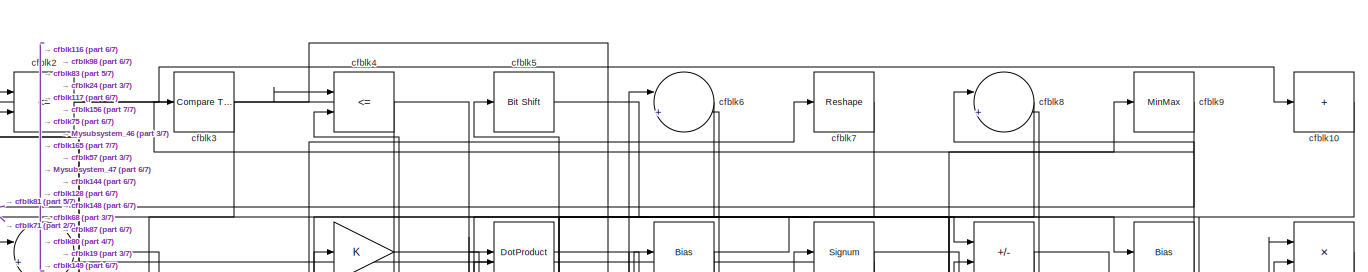
[diagram: root canvas - part 1/7, full width, top band]
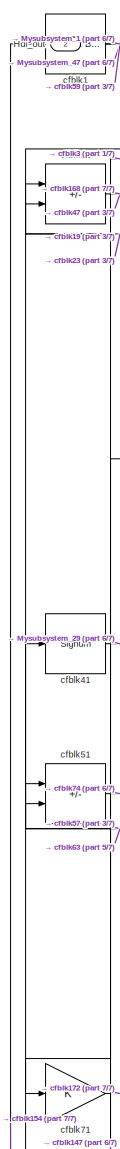
[diagram: root canvas - part 2/7, top left region]
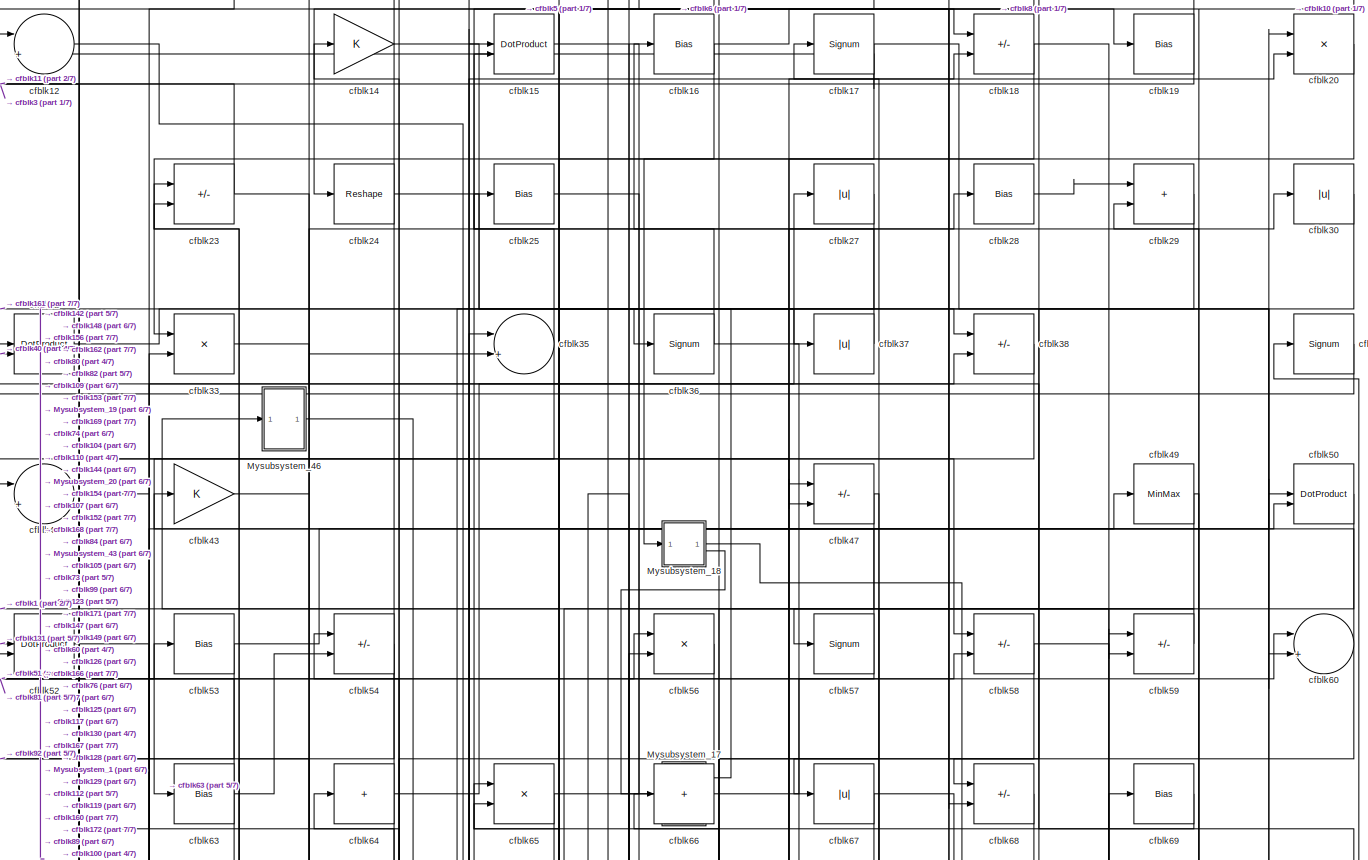
[diagram: root canvas - part 3/7, full width, top band]
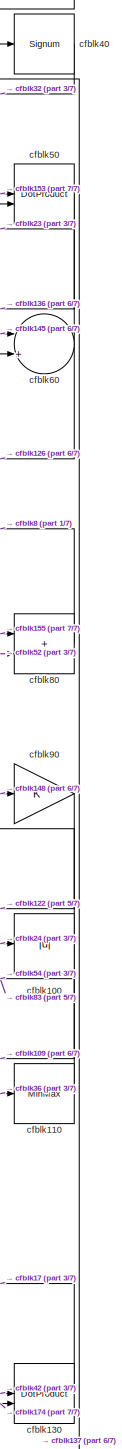
[diagram: root canvas - part 4/7, middle right region]
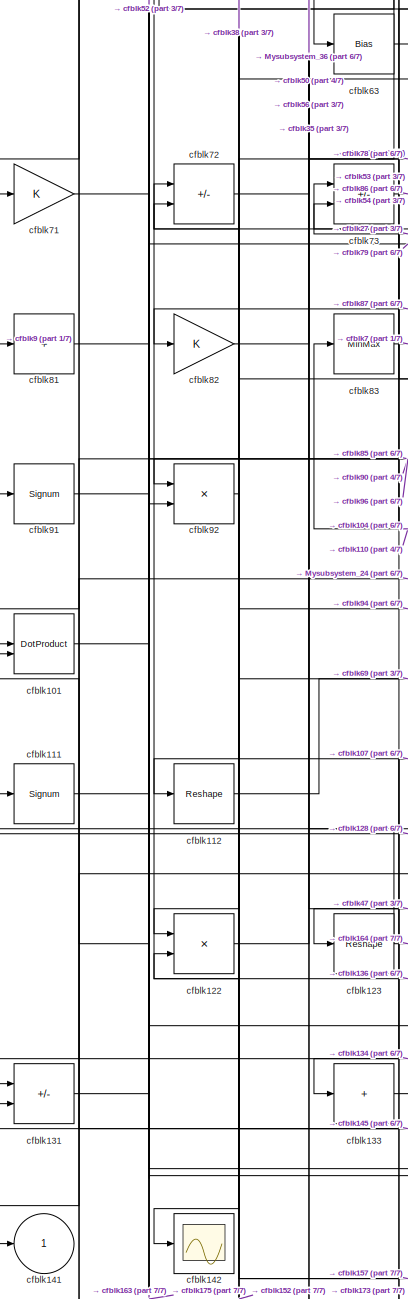
[diagram: root canvas - part 5/7, middle left region]
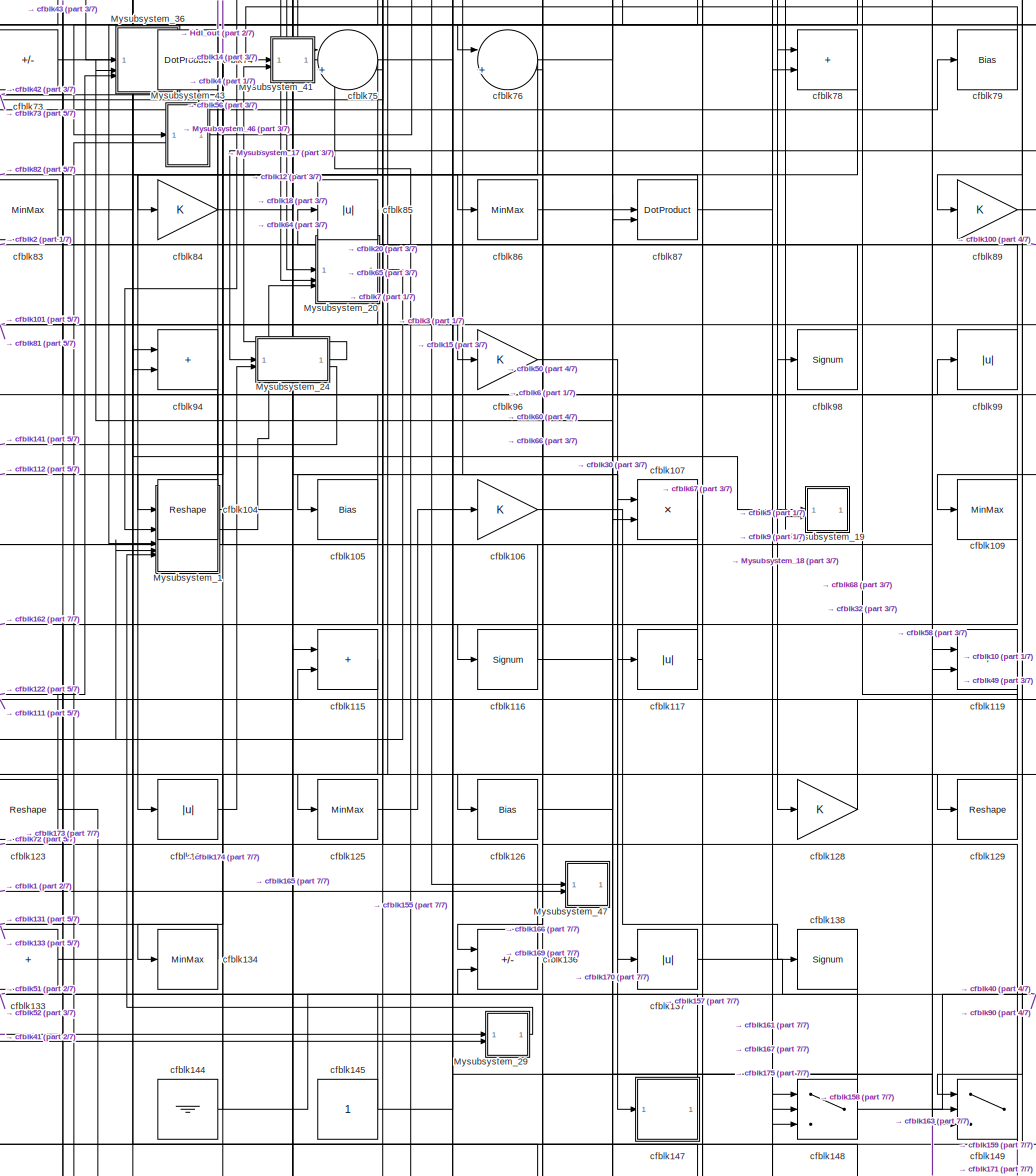
[diagram: root canvas - part 6/7, central region]
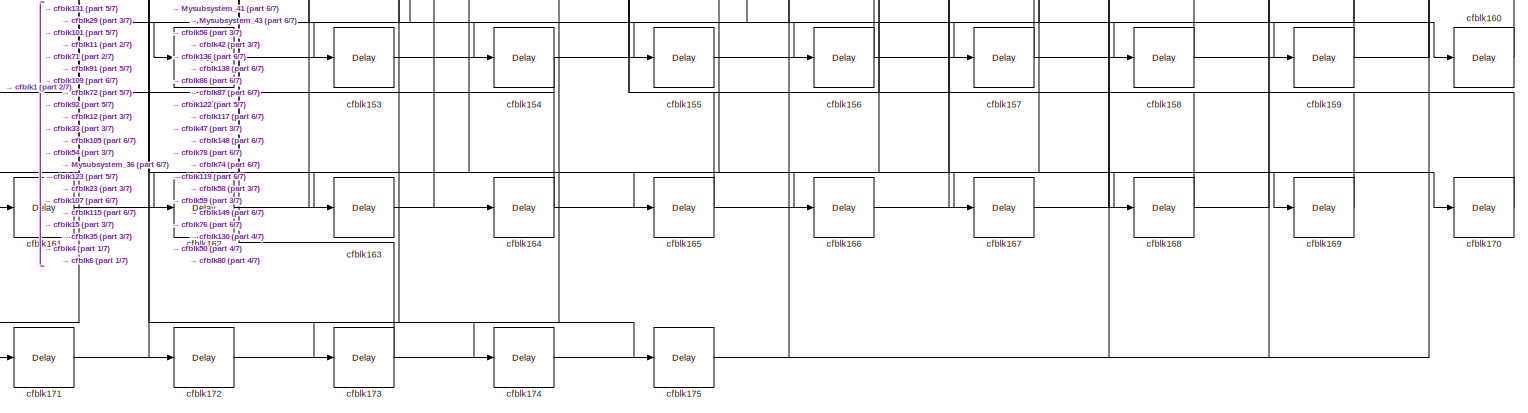
[diagram: root canvas - part 7/7, full width, bottom band]
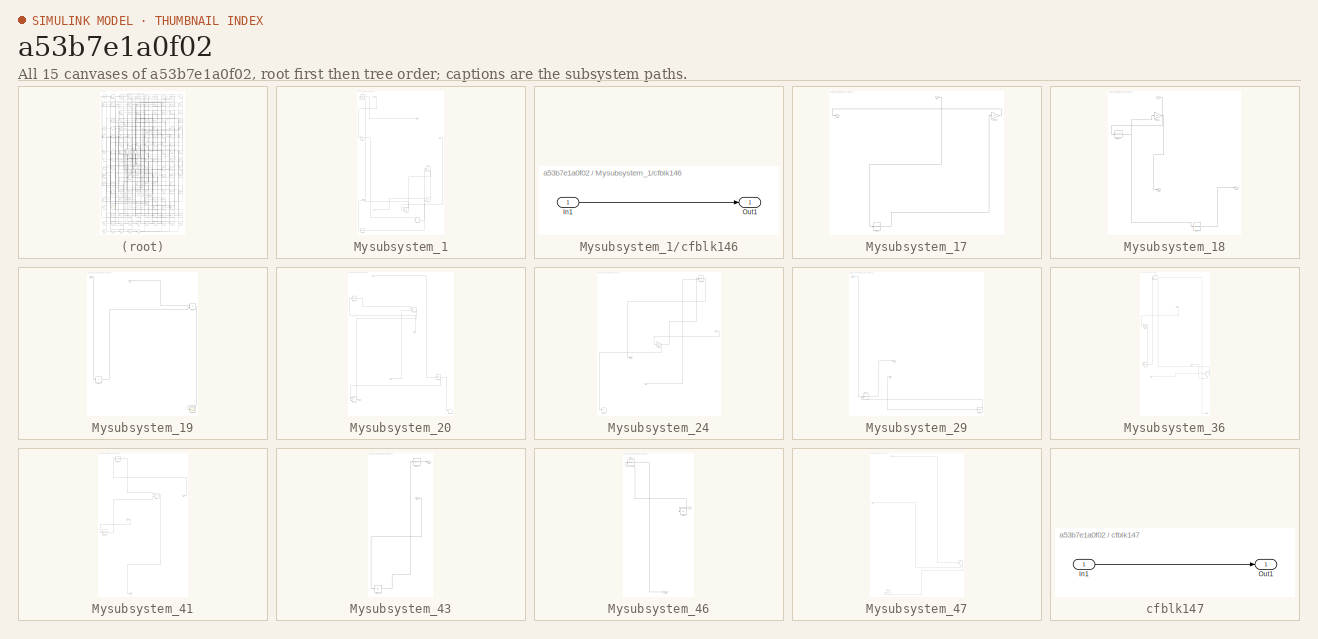
[diagram: thumbnail index - all 15 canvases of the model, root first then tree order]
MODEL slx_a53b7e1a0f02
KIND model
CONFIG AbsTol = auto
CONFIG EnableMultiTasking = off
CONFIG FixedStep = auto
CONFIG MaxStep = auto
CONFIG MinStep = auto
CONFIG RelTol = 1e-3
CONFIG SampleTimeConstraint = Unconstrained
CONFIG SolverName = VariableStepAuto
CONFIG StartTime = 0.0
CONFIG StopTime = 10.0
BLOCK [Outport] Hdl_out
  OutDataTypeStr = uint8
  Port = 2
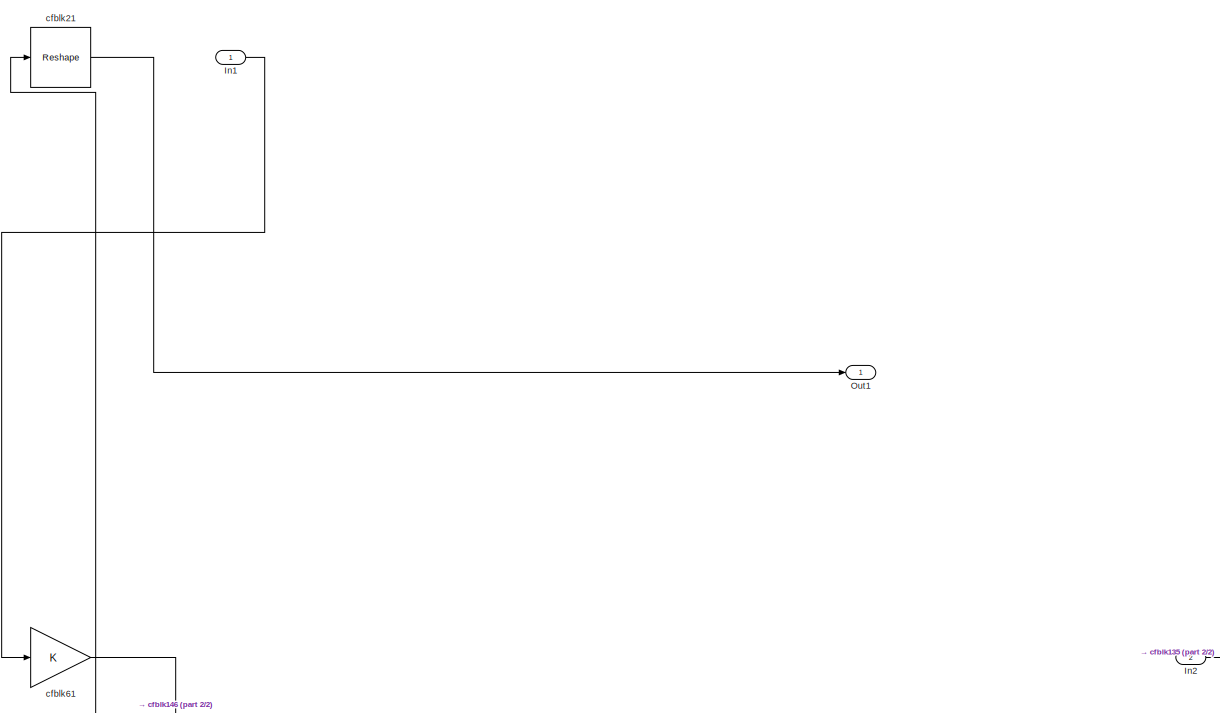
[diagram: Mysubsystem_1 - part 1/2, full width, top band]
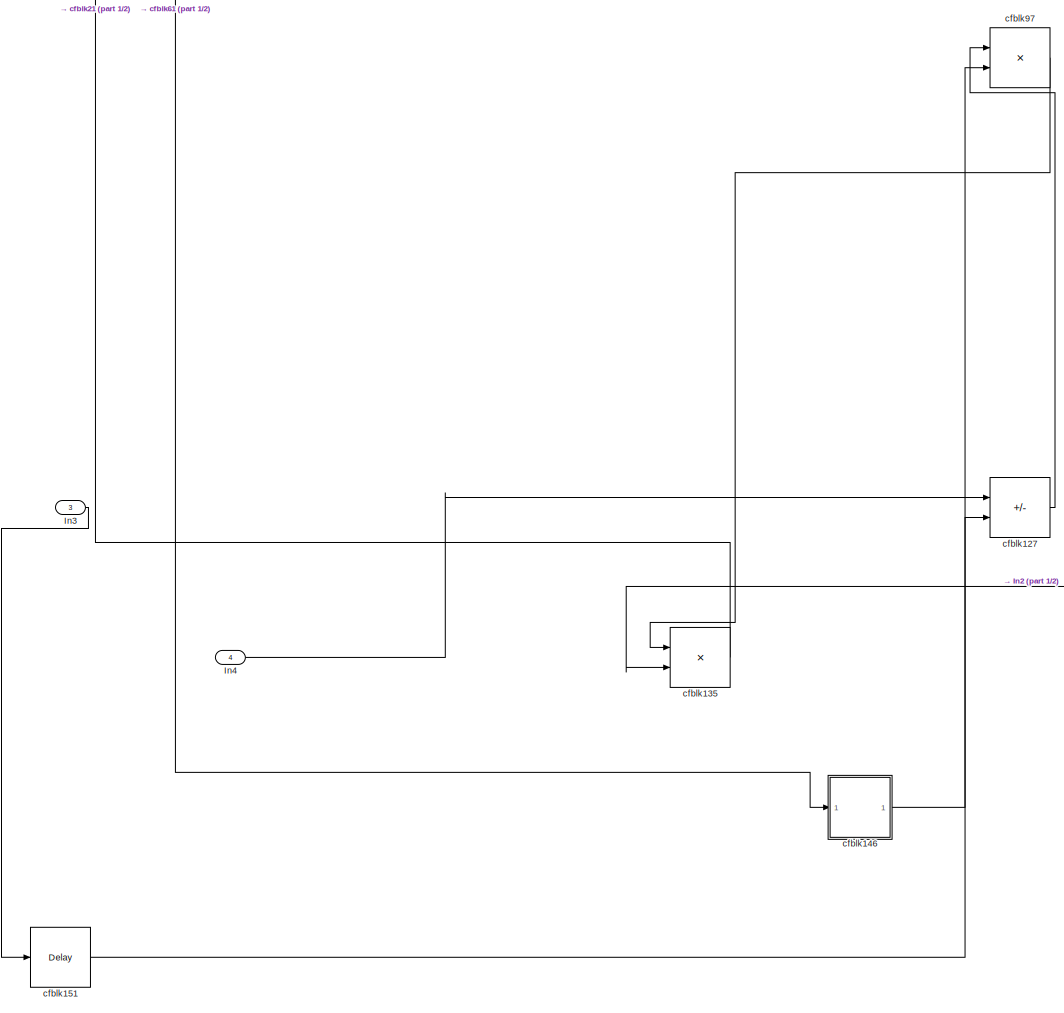
[diagram: Mysubsystem_1 - part 2/2, full width, bottom band]
BLOCK [SubSystem] Mysubsystem_1
  RTWFcnName = Mysubsystem_1
  RTWFcnNameOpts = User specified
  RTWFileNameOpts = Use function name
  RTWSystemCode = Reusable function
  TreatAsAtomicUnit = on
BLOCK [Inport] Mysubsystem_1/In1
BLOCK [Inport] Mysubsystem_1/In2
  Port = 2
BLOCK [Inport] Mysubsystem_1/In3
  Port = 3
BLOCK [Inport] Mysubsystem_1/In4
  Port = 4
BLOCK [Outport] Mysubsystem_1/Out1
BLOCK [Sum] Mysubsystem_1/cfblk127
  IconShape = rectangular
  Inputs = +-
BLOCK [Product] Mysubsystem_1/cfblk135
  Inputs = */
  RndMeth = Zero
  SaturateOnIntegerOverflow = on
BLOCK [SubSystem] Mysubsystem_1/cfblk146
  LibrarySourceBlock = hdlsllib/Ports &\nSubsystems/Subsystem
BLOCK [Inport] Mysubsystem_1/cfblk146/In1
BLOCK [Outport] Mysubsystem_1/cfblk146/Out1
BLOCK [Delay] Mysubsystem_1/cfblk151
  InputPortMap = u0
  SampleTime = 1
BLOCK [Reshape] Mysubsystem_1/cfblk21
BLOCK [Gain] Mysubsystem_1/cfblk61
BLOCK [Product] Mysubsystem_1/cfblk97
  Inputs = */
  RndMeth = Zero
  SaturateOnIntegerOverflow = on
BLOCK [SubSystem] Mysubsystem_17
  RTWFcnName = Mysubsystem_17
  RTWFcnNameOpts = User specified
  RTWFileNameOpts = Use function name
  RTWSystemCode = Reusable function
  TreatAsAtomicUnit = on
BLOCK [Inport] Mysubsystem_17/In1
BLOCK [Outport] Mysubsystem_17/Out1
BLOCK [Gain] Mysubsystem_17/cfblk39
BLOCK [Reshape] Mysubsystem_17/cfblk93
BLOCK [SubSystem] Mysubsystem_18
  RTWFcnName = Mysubsystem_18
  RTWFcnNameOpts = User specified
  RTWFileNameOpts = Use function name
  RTWSystemCode = Reusable function
  TreatAsAtomicUnit = on
BLOCK [Inport] Mysubsystem_18/In1
BLOCK [Outport] Mysubsystem_18/Out1
BLOCK [Outport] Mysubsystem_18/Out2
  Port = 2
BLOCK [Gain] Mysubsystem_18/cfblk26
BLOCK [Reshape] Mysubsystem_18/cfblk34
BLOCK [Signum] Mysubsystem_18/cfblk88
BLOCK [SubSystem] Mysubsystem_19
  RTWFcnName = Mysubsystem_19
  RTWFcnNameOpts = User specified
  RTWFileNameOpts = Use function name
  RTWSystemCode = Reusable function
  TreatAsAtomicUnit = on
BLOCK [Inport] Mysubsystem_19/In1
BLOCK [Inport] Mysubsystem_19/In2
  Port = 2
BLOCK [Sum] Mysubsystem_19/cfblk114
  IconShape = rectangular
  Inputs = +
BLOCK [Scope] Mysubsystem_19/cfblk140
  Floating = off
  NumInputPorts = 1
  ScopeSpecificationString = Simulink.scopes.TimeScopeBlockCfg('CurrentConfiguration', extmgr.ConfigurationSet(extmgr.Configuration('Core','General UI',true),extmgr.Configuration('Core','Source UI',true),extmgr.Configuration('Sources','WiredSimulink',true,'DataLoggingVariableName','ScopeData2','DataLoggingSaveFormat','Array','DataLoggingLimitDataPoints',true,'DataLoggingDecimation','1'),extmgr.Configuration('Visuals','Time Do...<+868ch>
BLOCK [Product] Mysubsystem_19/cfblk70
  Inputs = */
  RndMeth = Zero
  SaturateOnIntegerOverflow = on
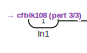
[diagram: Mysubsystem_20 - part 1/3, top left region]
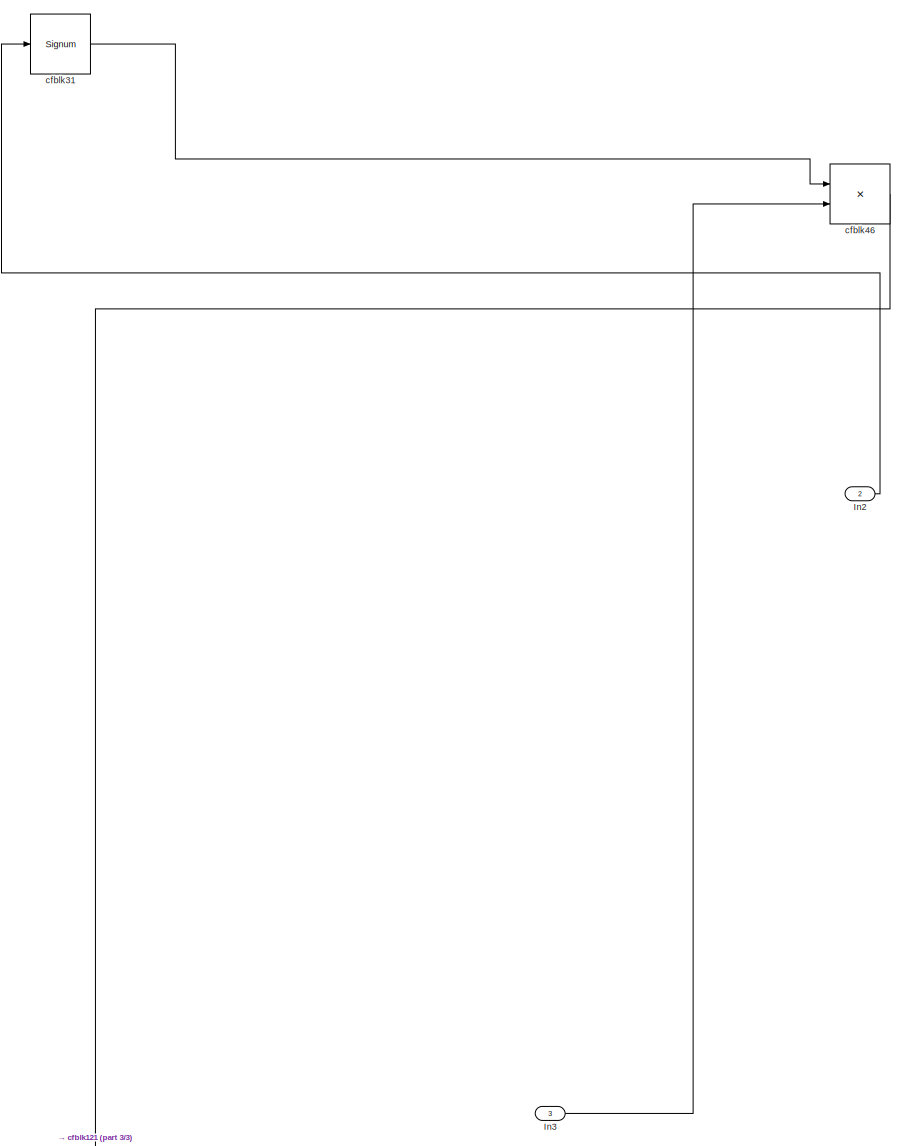
[diagram: Mysubsystem_20 - part 2/3, central region]
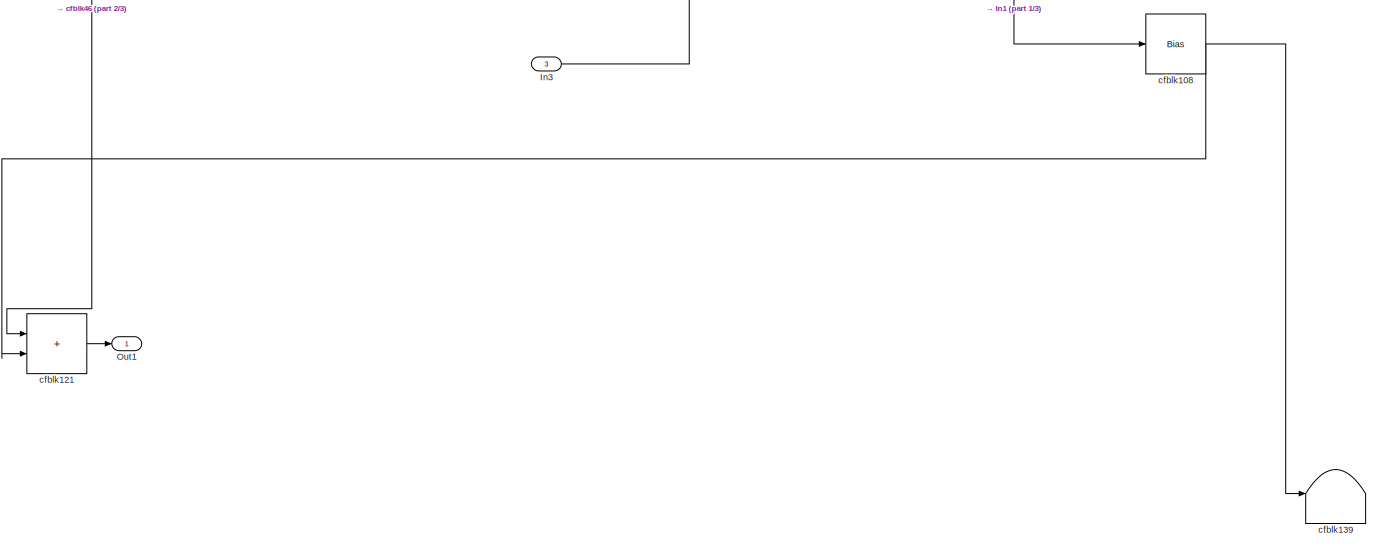
[diagram: Mysubsystem_20 - part 3/3, full width, bottom band]
BLOCK [SubSystem] Mysubsystem_20
  RTWFcnName = Mysubsystem_20
  RTWFcnNameOpts = User specified
  RTWFileNameOpts = Use function name
  RTWSystemCode = Reusable function
  TreatAsAtomicUnit = on
BLOCK [Inport] Mysubsystem_20/In1
BLOCK [Inport] Mysubsystem_20/In2
  Port = 2
BLOCK [Inport] Mysubsystem_20/In3
  Port = 3
BLOCK [Outport] Mysubsystem_20/Out1
BLOCK [Bias] Mysubsystem_20/cfblk108
  Bias = 0.0
  SaturateOnIntegerOverflow = off
BLOCK [Sum] Mysubsystem_20/cfblk121
  IconShape = rectangular
BLOCK [Terminator] Mysubsystem_20/cfblk139
BLOCK [Signum] Mysubsystem_20/cfblk31
BLOCK [Product] Mysubsystem_20/cfblk46
  Inputs = */
  RndMeth = Zero
  SaturateOnIntegerOverflow = on
BLOCK [SubSystem] Mysubsystem_24
  RTWFcnName = Mysubsystem_24
  RTWFcnNameOpts = User specified
  RTWFileNameOpts = Use function name
  RTWSystemCode = Reusable function
  TreatAsAtomicUnit = on
BLOCK [Inport] Mysubsystem_24/In1
BLOCK [Inport] Mysubsystem_24/In2
  Port = 2
BLOCK [Outport] Mysubsystem_24/Out1
BLOCK [Outport] Mysubsystem_24/cfblk141
  Port = 2
  VectorParamsAs1DForOutWhenUnconnected = off
BLOCK [DotProduct] Mysubsystem_24/cfblk48
  OutDataTypeStr = Inherit: Inherit via internal rule
BLOCK [Gain] Mysubsystem_24/cfblk95
BLOCK [SubSystem] Mysubsystem_29
  RTWFcnName = Mysubsystem_29
  RTWFcnNameOpts = User specified
  RTWFileNameOpts = Use function name
  RTWSystemCode = Reusable function
  TreatAsAtomicUnit = on
BLOCK [Inport] Mysubsystem_29/In1
BLOCK [Inport] Mysubsystem_29/In2
  Port = 2
BLOCK [Outport] Mysubsystem_29/Out1
BLOCK [DotProduct] Mysubsystem_29/cfblk132
  OutDataTypeStr = Inherit: Inherit via internal rule
BLOCK [Delay] Mysubsystem_29/cfblk150
  InputPortMap = u0
  SampleTime = 1
BLOCK [SubSystem] Mysubsystem_36
  RTWFcnName = Mysubsystem_36
  RTWFcnNameOpts = User specified
  RTWFileNameOpts = Use function name
  RTWSystemCode = Reusable function
  TreatAsAtomicUnit = on
BLOCK [Inport] Mysubsystem_36/In1
BLOCK [Inport] Mysubsystem_36/In2
  Port = 2
BLOCK [Inport] Mysubsystem_36/In3
  Port = 3
BLOCK [Outport] Mysubsystem_36/Out1
BLOCK [Reshape] Mysubsystem_36/cfblk102
BLOCK [Sum] Mysubsystem_36/cfblk118
  Inputs = |++
BLOCK [Sum] Mysubsystem_36/cfblk13
  IconShape = rectangular
BLOCK [MinMax] Mysubsystem_36/cfblk62
BLOCK [SubSystem] Mysubsystem_41
  RTWFcnName = Mysubsystem_41
  RTWFcnNameOpts = User specified
  RTWFileNameOpts = Use function name
  RTWSystemCode = Reusable function
  TreatAsAtomicUnit = on
BLOCK [Inport] Mysubsystem_41/In1
BLOCK [Inport] Mysubsystem_41/In2
  Port = 2
BLOCK [Outport] Mysubsystem_41/Out1
BLOCK [MinMax] Mysubsystem_41/cfblk103
BLOCK [Reshape] Mysubsystem_41/cfblk44
BLOCK [Sum] Mysubsystem_41/cfblk77
  IconShape = rectangular
  Inputs = +-
BLOCK [SubSystem] Mysubsystem_43
  RTWFcnName = Mysubsystem_43
  RTWFcnNameOpts = User specified
  RTWFileNameOpts = Use function name
  RTWSystemCode = Reusable function
  TreatAsAtomicUnit = on
BLOCK [Inport] Mysubsystem_43/In1
BLOCK [Outport] Mysubsystem_43/Out1
BLOCK [Abs] Mysubsystem_43/cfblk113
  SaturateOnIntegerOverflow = off
BLOCK [Signum] Mysubsystem_43/cfblk45
BLOCK [SubSystem] Mysubsystem_46
  RTWFcnName = Mysubsystem_46
  RTWFcnNameOpts = User specified
  RTWFileNameOpts = Use function name
  RTWSystemCode = Reusable function
  TreatAsAtomicUnit = on
BLOCK [Inport] Mysubsystem_46/In1
BLOCK [Outport] Mysubsystem_46/Out1
BLOCK [MinMax] Mysubsystem_46/cfblk22
BLOCK [Abs] Mysubsystem_46/cfblk55
  SaturateOnIntegerOverflow = off
BLOCK [SubSystem] Mysubsystem_47
  RTWFcnName = Mysubsystem_47
  RTWFcnNameOpts = User specified
  RTWFileNameOpts = Use function name
  RTWSystemCode = Reusable function
  TreatAsAtomicUnit = on
BLOCK [Inport] Mysubsystem_47/In1
BLOCK [Inport] Mysubsystem_47/In2
  Port = 2
BLOCK [Sum] Mysubsystem_47/cfblk120
  Inputs = |++
BLOCK [Display] Mysubsystem_47/cfblk143
  Decimation = 1
BLOCK [Reference] cfblk1  REF=simulink/Logic and Bit
Operations/Extract Bits
  LibrarySourceBlock = hdlsllib/Logic and Bit\nOperations/Extract Bits
  SourceBlock = simulink/Logic and Bit\nOperations/Extract Bits
  SourceType = Extract Bits
BLOCK [Sum] cfblk10
  IconShape = rectangular
  Inputs = +
  OutDataTypeStr = uint8
BLOCK [Abs] cfblk100
  OutDataTypeStr = uint8
  SaturateOnIntegerOverflow = off
BLOCK [DotProduct] cfblk101
  OutDataTypeStr = uint8
BLOCK [Reshape] cfblk104
BLOCK [Bias] cfblk105
  Bias = 0.0
  SaturateOnIntegerOverflow = off
BLOCK [Gain] cfblk106
  OutDataTypeStr = uint8
BLOCK [Product] cfblk107
  Inputs = */
  OutDataTypeStr = uint8
  RndMeth = Zero
  SaturateOnIntegerOverflow = on
BLOCK [MinMax] cfblk109
  OutDataTypeStr = uint8
BLOCK [Sum] cfblk11
  IconShape = rectangular
  Inputs = +-
  OutDataTypeStr = uint8
BLOCK [MinMax] cfblk110
  OutDataTypeStr = uint8
BLOCK [Signum] cfblk111
BLOCK [Reshape] cfblk112
BLOCK [Sum] cfblk115
  IconShape = rectangular
  OutDataTypeStr = uint8
BLOCK [Signum] cfblk116
BLOCK [Abs] cfblk117
  OutDataTypeStr = uint8
  SaturateOnIntegerOverflow = off
BLOCK [Sum] cfblk119
  IconShape = rectangular
  OutDataTypeStr = uint8
BLOCK [Sum] cfblk12
  Inputs = |++
  OutDataTypeStr = uint8
BLOCK [Product] cfblk122
  Inputs = */
  OutDataTypeStr = uint8
  RndMeth = Zero
  SaturateOnIntegerOverflow = on
BLOCK [Reshape] cfblk123
BLOCK [Abs] cfblk124
  OutDataTypeStr = uint8
  SaturateOnIntegerOverflow = off
BLOCK [MinMax] cfblk125
  OutDataTypeStr = uint8
BLOCK [Bias] cfblk126
  Bias = 0.0
  SaturateOnIntegerOverflow = off
BLOCK [Gain] cfblk128
  OutDataTypeStr = uint8
BLOCK [Reshape] cfblk129
BLOCK [DotProduct] cfblk130
  OutDataTypeStr = uint8
BLOCK [Sum] cfblk131
  IconShape = rectangular
  Inputs = +-
  OutDataTypeStr = uint8
BLOCK [Sum] cfblk133
  IconShape = rectangular
  Inputs = +
  OutDataTypeStr = uint8
BLOCK [MinMax] cfblk134
  OutDataTypeStr = uint8
BLOCK [Sum] cfblk136
  IconShape = rectangular
  Inputs = +-
  OutDataTypeStr = uint8
BLOCK [Abs] cfblk137
  OutDataTypeStr = uint8
  SaturateOnIntegerOverflow = off
BLOCK [Signum] cfblk138
BLOCK [Gain] cfblk14
  OutDataTypeStr = uint8
BLOCK [Outport] cfblk141
  OutDataTypeStr = uint8
  VectorParamsAs1DForOutWhenUnconnected = off
BLOCK [Scope] cfblk142
  Floating = off
  NumInputPorts = 1
  ScopeSpecificationString = Simulink.scopes.TimeScopeBlockCfg('CurrentConfiguration', extmgr.ConfigurationSet(extmgr.Configuration('Core','General UI',true),extmgr.Configuration('Core','Source UI',true),extmgr.Configuration('Sources','WiredSimulink',true,'DataLoggingVariableName','ScopeData2','DataLoggingSaveFormat','Array','DataLoggingLimitDataPoints',true,'DataLoggingDecimation','1'),extmgr.Configuration('Visuals','Time Do...<+868ch>
BLOCK [Ground] cfblk144
BLOCK [Constant] cfblk145
  OutDataTypeStr = uint8
  SampleTime = -1
BLOCK [SubSystem] cfblk147
  LibrarySourceBlock = hdlsllib/Ports &\nSubsystems/Subsystem
BLOCK [Inport] cfblk147/In1
BLOCK [Outport] cfblk147/Out1
BLOCK [Switch] cfblk148
  InputSameDT = off
  OutDataTypeStr = uint8
  SaturateOnIntegerOverflow = off
BLOCK [Switch] cfblk149
  InputSameDT = off
  OutDataTypeStr = uint8
  SaturateOnIntegerOverflow = off
BLOCK [DotProduct] cfblk15
  OutDataTypeStr = uint8
BLOCK [Delay] cfblk152
  InputPortMap = u0
  SampleTime = 1
BLOCK [Delay] cfblk153
  InputPortMap = u0
  SampleTime = 1
BLOCK [Delay] cfblk154
  InputPortMap = u0
  SampleTime = 1
BLOCK [Delay] cfblk155
  InputPortMap = u0
  SampleTime = 1
BLOCK [Delay] cfblk156
  InputPortMap = u0
  SampleTime = 1
BLOCK [Delay] cfblk157
  InputPortMap = u0
  SampleTime = 1
BLOCK [Delay] cfblk158
  InputPortMap = u0
  SampleTime = 1
BLOCK [Delay] cfblk159
  InputPortMap = u0
  SampleTime = 1
BLOCK [Bias] cfblk16
  Bias = 0.0
  SaturateOnIntegerOverflow = off
BLOCK [Delay] cfblk160
  InputPortMap = u0
  SampleTime = 1
BLOCK [Delay] cfblk161
  InputPortMap = u0
  SampleTime = 1
BLOCK [Delay] cfblk162
  InputPortMap = u0
  SampleTime = 1
BLOCK [Delay] cfblk163
  InputPortMap = u0
  SampleTime = 1
BLOCK [Delay] cfblk164
  InputPortMap = u0
  SampleTime = 1
BLOCK [Delay] cfblk165
  InputPortMap = u0
  SampleTime = 1
BLOCK [Delay] cfblk166
  InputPortMap = u0
  SampleTime = 1
BLOCK [Delay] cfblk167
  InputPortMap = u0
  SampleTime = 1
BLOCK [Delay] cfblk168
  InputPortMap = u0
  SampleTime = 1
BLOCK [Delay] cfblk169
  InputPortMap = u0
  SampleTime = 1
BLOCK [Signum] cfblk17
BLOCK [Delay] cfblk170
  InputPortMap = u0
  SampleTime = 1
BLOCK [Delay] cfblk171
  InputPortMap = u0
  SampleTime = 1
BLOCK [Delay] cfblk172
  InputPortMap = u0
  SampleTime = 1
BLOCK [Delay] cfblk173
  InputPortMap = u0
  SampleTime = 1
BLOCK [Delay] cfblk174
  InputPortMap = u0
  SampleTime = 1
BLOCK [Delay] cfblk175
  InputPortMap = u0
  SampleTime = 1
BLOCK [Sum] cfblk18
  IconShape = rectangular
  Inputs = +-
  OutDataTypeStr = uint8
BLOCK [Bias] cfblk19
  Bias = 0.0
  SaturateOnIntegerOverflow = off
BLOCK [RelationalOperator] cfblk2
  InputSameDT = off
  Operator = <=
  OutDataTypeStr = boolean
BLOCK [Product] cfblk20
  Inputs = */
  OutDataTypeStr = uint8
  RndMeth = Zero
  SaturateOnIntegerOverflow = on
BLOCK [Sum] cfblk23
  IconShape = rectangular
  Inputs = +-
  OutDataTypeStr = uint8
BLOCK [Reshape] cfblk24
BLOCK [Bias] cfblk25
  Bias = 0.0
  SaturateOnIntegerOverflow = off
BLOCK [Abs] cfblk27
  OutDataTypeStr = uint8
  SaturateOnIntegerOverflow = off
BLOCK [Bias] cfblk28
  Bias = 0.0
  SaturateOnIntegerOverflow = off
BLOCK [Sum] cfblk29
  IconShape = rectangular
  OutDataTypeStr = uint8
BLOCK [Reference] cfblk3  REF=hdlsllib/Logic and Bit
Operations/Compare
To Zero
  SourceBlock = hdlsllib/Logic and Bit\nOperations/Compare\nTo Zero
  SourceType = Compare To Zero
BLOCK [Abs] cfblk30
  OutDataTypeStr = uint8
  SaturateOnIntegerOverflow = off
BLOCK [DotProduct] cfblk32
  OutDataTypeStr = uint8
BLOCK [Product] cfblk33
  Inputs = */
  OutDataTypeStr = uint8
  RndMeth = Zero
  SaturateOnIntegerOverflow = on
BLOCK [Sum] cfblk35
  Inputs = |++
  OutDataTypeStr = uint8
BLOCK [Signum] cfblk36
BLOCK [Abs] cfblk37
  OutDataTypeStr = uint8
  SaturateOnIntegerOverflow = off
BLOCK [Sum] cfblk38
  IconShape = rectangular
  Inputs = +-
  OutDataTypeStr = uint8
BLOCK [RelationalOperator] cfblk4
  InputSameDT = off
  Operator = <=
  OutDataTypeStr = boolean
BLOCK [Signum] cfblk40
BLOCK [Signum] cfblk41
BLOCK [Sum] cfblk42
  Inputs = |++
  OutDataTypeStr = uint8
BLOCK [Gain] cfblk43
  OutDataTypeStr = uint8
BLOCK [Sum] cfblk47
  IconShape = rectangular
  Inputs = +-
  OutDataTypeStr = uint8
BLOCK [MinMax] cfblk49
  OutDataTypeStr = uint8
BLOCK [Reference] cfblk5  REF=hdlsllib/Logic and Bit
Operations/Bit Shift
  SourceBlock = hdlsllib/Logic and Bit\nOperations/Bit Shift
  SourceType = Bit Shift
BLOCK [DotProduct] cfblk50
  OutDataTypeStr = uint8
BLOCK [Sum] cfblk51
  IconShape = rectangular
  Inputs = +-
  OutDataTypeStr = uint8
BLOCK [DotProduct] cfblk52
  OutDataTypeStr = uint8
BLOCK [Bias] cfblk53
  Bias = 0.0
  SaturateOnIntegerOverflow = off
BLOCK [Sum] cfblk54
  IconShape = rectangular
  Inputs = +-
  OutDataTypeStr = uint8
BLOCK [Product] cfblk56
  Inputs = */
  OutDataTypeStr = uint8
  RndMeth = Zero
  SaturateOnIntegerOverflow = on
BLOCK [Signum] cfblk57
BLOCK [Sum] cfblk58
  IconShape = rectangular
  Inputs = +-
  OutDataTypeStr = uint8
BLOCK [Sum] cfblk59
  IconShape = rectangular
  Inputs = +-
  OutDataTypeStr = uint8
BLOCK [Sum] cfblk6
  Inputs = |++
  OutDataTypeStr = uint8
BLOCK [Sum] cfblk60
  Inputs = |++
  OutDataTypeStr = uint8
BLOCK [Bias] cfblk63
  Bias = 0.0
  SaturateOnIntegerOverflow = off
BLOCK [Sum] cfblk64
  IconShape = rectangular
  Inputs = +
  OutDataTypeStr = uint8
BLOCK [Product] cfblk65
  Inputs = */
  OutDataTypeStr = uint8
  RndMeth = Zero
  SaturateOnIntegerOverflow = on
BLOCK [Sum] cfblk66
  IconShape = rectangular
  Inputs = +
  OutDataTypeStr = uint8
BLOCK [Abs] cfblk67
  OutDataTypeStr = uint8
  SaturateOnIntegerOverflow = off
BLOCK [Sum] cfblk68
  IconShape = rectangular
  Inputs = +-
  OutDataTypeStr = uint8
BLOCK [Bias] cfblk69
  Bias = 0.0
  SaturateOnIntegerOverflow = off
BLOCK [Reshape] cfblk7
BLOCK [Gain] cfblk71
  OutDataTypeStr = uint8
BLOCK [Sum] cfblk72
  IconShape = rectangular
  Inputs = +-
  OutDataTypeStr = uint8
BLOCK [Sum] cfblk73
  IconShape = rectangular
  Inputs = +-
  OutDataTypeStr = uint8
BLOCK [DotProduct] cfblk74
  OutDataTypeStr = uint8
BLOCK [Sum] cfblk75
  Inputs = |++
  OutDataTypeStr = uint8
BLOCK [Sum] cfblk76
  Inputs = |++
  OutDataTypeStr = uint8
BLOCK [Sum] cfblk78
  IconShape = rectangular
  OutDataTypeStr = uint8
BLOCK [Bias] cfblk79
  Bias = 0.0
  SaturateOnIntegerOverflow = off
BLOCK [Sum] cfblk8
  Inputs = |++
  OutDataTypeStr = uint8
BLOCK [Sum] cfblk80
  IconShape = rectangular
  OutDataTypeStr = uint8
BLOCK [Sum] cfblk81
  IconShape = rectangular
  Inputs = +
  OutDataTypeStr = uint8
BLOCK [Gain] cfblk82
  OutDataTypeStr = uint8
BLOCK [MinMax] cfblk83
  OutDataTypeStr = uint8
BLOCK [Gain] cfblk84
  OutDataTypeStr = uint8
BLOCK [Abs] cfblk85
  OutDataTypeStr = uint8
  SaturateOnIntegerOverflow = off
BLOCK [MinMax] cfblk86
  OutDataTypeStr = uint8
BLOCK [DotProduct] cfblk87
  OutDataTypeStr = uint8
BLOCK [Gain] cfblk89
  OutDataTypeStr = uint8
BLOCK [MinMax] cfblk9
  OutDataTypeStr = uint8
BLOCK [Gain] cfblk90
  OutDataTypeStr = uint8
BLOCK [Signum] cfblk91
BLOCK [Product] cfblk92
  Inputs = */
  OutDataTypeStr = uint8
  RndMeth = Zero
  SaturateOnIntegerOverflow = on
BLOCK [Sum] cfblk94
  IconShape = rectangular
  OutDataTypeStr = uint8
BLOCK [Gain] cfblk96
  OutDataTypeStr = uint8
BLOCK [Signum] cfblk98
BLOCK [Abs] cfblk99
  OutDataTypeStr = uint8
  SaturateOnIntegerOverflow = off
LINE Mysubsystem_1/In1:1 -> Mysubsystem_1/cfblk61:1
LINE Mysubsystem_1/In2:1 -> Mysubsystem_1/cfblk135:2
LINE Mysubsystem_1/In3:1 -> Mysubsystem_1/cfblk151:1
LINE Mysubsystem_1/In4:1 -> Mysubsystem_1/cfblk127:1
LINE Mysubsystem_1/cfblk127:1 -> Mysubsystem_1/cfblk97:1
LINE Mysubsystem_1/cfblk135:1 -> Mysubsystem_1/cfblk21:1
LINE Mysubsystem_1/cfblk146/In1:1 -> Mysubsystem_1/cfblk146/Out1:1
LINE Mysubsystem_1/cfblk146:1 -> Mysubsystem_1/cfblk97:2
LINE Mysubsystem_1/cfblk151:1 -> Mysubsystem_1/cfblk127:2
LINE Mysubsystem_1/cfblk21:1 -> Mysubsystem_1/Out1:1
LINE Mysubsystem_1/cfblk61:1 -> Mysubsystem_1/cfblk146:1
LINE Mysubsystem_1/cfblk97:1 -> Mysubsystem_1/cfblk135:1
LINE Mysubsystem_17/In1:1 -> Mysubsystem_17/cfblk93:1
LINE Mysubsystem_17/cfblk39:1 -> Mysubsystem_17/Out1:1
LINE Mysubsystem_17/cfblk93:1 -> Mysubsystem_17/cfblk39:1
LINE Mysubsystem_17:1 -> Mysubsystem_20:2
LINE Mysubsystem_18/In1:1 -> Mysubsystem_18/cfblk34:1
LINE Mysubsystem_18/cfblk26:1 -> Mysubsystem_18/Out2:1
NET Mysubsystem_18/cfblk34:1 -> Mysubsystem_18/cfblk26:1, Mysubsystem_18/cfblk88:1
LINE Mysubsystem_18/cfblk88:1 -> Mysubsystem_18/Out1:1
LINE Mysubsystem_18:1 -> Mysubsystem_19:2
LINE Mysubsystem_18:2 -> Mysubsystem_17:1
LINE Mysubsystem_19/In1:1 -> Mysubsystem_19/cfblk114:1
LINE Mysubsystem_19/In2:1 -> Mysubsystem_19/cfblk70:1
LINE Mysubsystem_19/cfblk114:1 -> Mysubsystem_19/cfblk70:2
LINE Mysubsystem_19/cfblk70:1 -> Mysubsystem_19/cfblk140:1
NET Mysubsystem_1:1 -> Hdl_out:1, Mysubsystem_20:3
LINE Mysubsystem_20/In1:1 -> Mysubsystem_20/cfblk108:1
LINE Mysubsystem_20/In2:1 -> Mysubsystem_20/cfblk31:1
LINE Mysubsystem_20/In3:1 -> Mysubsystem_20/cfblk46:2
NET Mysubsystem_20/cfblk108:1 -> Mysubsystem_20/cfblk121:2, Mysubsystem_20/cfblk139:1
LINE Mysubsystem_20/cfblk121:1 -> Mysubsystem_20/Out1:1
LINE Mysubsystem_20/cfblk31:1 -> Mysubsystem_20/cfblk46:1
LINE Mysubsystem_20/cfblk46:1 -> Mysubsystem_20/cfblk121:1
NET Mysubsystem_20:1 -> Mysubsystem_1:3, Mysubsystem_29:2
LINE Mysubsystem_24/In1:1 -> Mysubsystem_24/cfblk95:1
LINE Mysubsystem_24/In2:1 -> Mysubsystem_24/cfblk48:2
LINE Mysubsystem_24/cfblk48:1 -> Mysubsystem_24/Out1:1
NET Mysubsystem_24/cfblk95:1 -> Mysubsystem_24/cfblk141:1, Mysubsystem_24/cfblk48:1
LINE Mysubsystem_24:1 -> Mysubsystem_41:2
LINE Mysubsystem_24:2 -> cfblk141:1
LINE Mysubsystem_29/In1:1 -> Mysubsystem_29/cfblk132:1
LINE Mysubsystem_29/In2:1 -> Mysubsystem_29/cfblk150:1
LINE Mysubsystem_29/cfblk132:1 -> Mysubsystem_29/Out1:1
LINE Mysubsystem_29/cfblk150:1 -> Mysubsystem_29/cfblk132:2
LINE Mysubsystem_29:1 -> Mysubsystem_1:4
LINE Mysubsystem_36/In1:1 -> Mysubsystem_36/cfblk62:1
LINE Mysubsystem_36/In2:1 -> Mysubsystem_36/cfblk118:2
LINE Mysubsystem_36/In3:1 -> Mysubsystem_36/cfblk118:1
LINE Mysubsystem_36/cfblk102:1 -> Mysubsystem_36/cfblk13:1
LINE Mysubsystem_36/cfblk118:1 -> Mysubsystem_36/cfblk13:2
LINE Mysubsystem_36/cfblk13:1 -> Mysubsystem_36/Out1:1
LINE Mysubsystem_36/cfblk62:1 -> Mysubsystem_36/cfblk102:1
LINE Mysubsystem_36:1 -> cfblk158:1
LINE Mysubsystem_41/In1:1 -> Mysubsystem_41/cfblk44:1
LINE Mysubsystem_41/In2:1 -> Mysubsystem_41/cfblk103:1
LINE Mysubsystem_41/cfblk103:1 -> Mysubsystem_41/cfblk77:2
LINE Mysubsystem_41/cfblk44:1 -> Mysubsystem_41/cfblk77:1
LINE Mysubsystem_41/cfblk77:1 -> Mysubsystem_41/Out1:1
LINE Mysubsystem_41:1 -> cfblk155:1
LINE Mysubsystem_43/In1:1 -> Mysubsystem_43/cfblk113:1
LINE Mysubsystem_43/cfblk113:1 -> Mysubsystem_43/cfblk45:1
LINE Mysubsystem_43/cfblk45:1 -> Mysubsystem_43/Out1:1
NET Mysubsystem_43:1 -> Mysubsystem_36:1, cfblk159:1
LINE Mysubsystem_46/In1:1 -> Mysubsystem_46/cfblk55:1
LINE Mysubsystem_46/cfblk22:1 -> Mysubsystem_46/Out1:1
LINE Mysubsystem_46/cfblk55:1 -> Mysubsystem_46/cfblk22:1
LINE Mysubsystem_46:1 -> Mysubsystem_1:1
LINE Mysubsystem_47/In1:1 -> Mysubsystem_47/cfblk120:1
LINE Mysubsystem_47/In2:1 -> Mysubsystem_47/cfblk120:2
LINE Mysubsystem_47/cfblk120:1 -> Mysubsystem_47/cfblk143:1
NET cfblk100:1 -> cfblk109:1, cfblk23:2
LINE cfblk101:1 -> cfblk175:1
NET cfblk104:1 -> cfblk73:2, cfblk98:1
NET cfblk105:1 -> cfblk14:1, cfblk173:1
NET cfblk106:1 -> Mysubsystem_36:2, cfblk138:1
NET cfblk107:1 -> cfblk133:1, cfblk174:1
NET cfblk109:1 -> cfblk162:1, cfblk43:1
NET cfblk10:1 -> cfblk149:1, cfblk68:2, cfblk75:1
NET cfblk110:1 -> cfblk54:1, cfblk83:1
LINE cfblk111:1 -> cfblk79:1
LINE cfblk112:1 -> cfblk69:1
LINE cfblk115:1 -> cfblk134:1
NET cfblk116:1 -> cfblk149:3, cfblk2:2
NET cfblk117:1 -> cfblk157:1, cfblk4:2
LINE cfblk119:1 -> cfblk115:2
NET cfblk11:1 -> cfblk168:1, cfblk47:2
NET cfblk122:1 -> Mysubsystem_36:3, cfblk50:2
NET cfblk123:1 -> cfblk164:1, cfblk91:1
LINE cfblk124:1 -> Mysubsystem_24:2
LINE cfblk125:1 -> cfblk106:1
NET cfblk126:1 -> cfblk20:2, cfblk99:1
NET cfblk128:1 -> cfblk111:1, cfblk6:2
LINE cfblk129:1 -> cfblk32:1
NET cfblk12:1 -> Mysubsystem_20:1, cfblk154:1, cfblk18:1
LINE cfblk130:1 -> cfblk17:1
LINE cfblk131:1 -> cfblk52:1
LINE cfblk133:1 -> cfblk94:1
LINE cfblk134:1 -> cfblk131:1
NET cfblk136:1 -> cfblk72:1, cfblk85:1
LINE cfblk137:1 -> cfblk40:1
LINE cfblk138:1 -> cfblk166:1
NET cfblk144:1 -> cfblk64:1, cfblk6:1
NET cfblk145:1 -> cfblk101:2, cfblk149:2, cfblk60:1
LINE cfblk147/In1:1 -> cfblk147/Out1:1
LINE cfblk147:1 -> cfblk51:1
NET cfblk148:1 -> cfblk52:2, cfblk90:1
NET cfblk149:1 -> cfblk171:1, cfblk66:1
LINE cfblk14:1 -> cfblk37:1
LINE cfblk152:1 -> cfblk35:1
LINE cfblk153:1 -> cfblk50:1
LINE cfblk154:1 -> cfblk1:1
LINE cfblk155:1 -> cfblk80:1
LINE cfblk156:1 -> cfblk42:2
LINE cfblk157:1 -> cfblk122:2
LINE cfblk158:1 -> cfblk74:1
LINE cfblk159:1 -> cfblk76:2
NET cfblk15:1 -> cfblk107:2, cfblk147:1
LINE cfblk160:1 -> cfblk29:2
LINE cfblk161:1 -> cfblk78:2
LINE cfblk162:1 -> cfblk33:2
LINE cfblk163:1 -> cfblk119:2
LINE cfblk164:1 -> cfblk131:2
LINE cfblk165:1 -> cfblk115:1
LINE cfblk166:1 -> cfblk47:1
LINE cfblk167:1 -> cfblk148:3
LINE cfblk168:1 -> cfblk15:1
LINE cfblk169:1 -> cfblk136:2
NET cfblk16:1 -> Mysubsystem_18:1, cfblk19:1
LINE cfblk170:1 -> cfblk87:1
LINE cfblk171:1 -> cfblk56:2
LINE cfblk172:1 -> cfblk59:1
LINE cfblk173:1 -> cfblk72:2
LINE cfblk174:1 -> cfblk130:2
LINE cfblk175:1 -> cfblk148:1
NET cfblk17:1 -> cfblk12:2, cfblk33:1, cfblk60:2
NET cfblk18:1 -> cfblk119:1, cfblk87:2
NET cfblk19:1 -> cfblk11:2, cfblk3:1, cfblk8:1
NET cfblk1:1 -> Mysubsystem_47:2, cfblk59:2
LINE cfblk20:1 -> cfblk105:1
NET cfblk23:1 -> cfblk11:1, cfblk169:1
LINE cfblk24:1 -> cfblk100:1
LINE cfblk25:1 -> cfblk58:1
LINE cfblk27:1 -> cfblk73:1
LINE cfblk28:1 -> cfblk29:1
NET cfblk29:1 -> cfblk161:1, cfblk36:1
LINE cfblk2:1 -> cfblk10:1
LINE cfblk30:1 -> cfblk68:1
LINE cfblk32:1 -> cfblk38:1
LINE cfblk33:1 -> cfblk35:2
NET cfblk35:1 -> cfblk15:2, cfblk63:1
NET cfblk36:1 -> cfblk110:1, cfblk25:1
LINE cfblk37:1 -> cfblk16:1
LINE cfblk38:1 -> cfblk142:1
NET cfblk3:1 -> Mysubsystem_47:1, cfblk4:1, cfblk71:1
LINE cfblk40:1 -> cfblk32:2
LINE cfblk41:1 -> Mysubsystem_29:1
NET cfblk42:1 -> cfblk130:1, cfblk38:2
NET cfblk43:1 -> Mysubsystem_19:1, cfblk28:1
NET cfblk47:1 -> cfblk123:1, cfblk167:1, cfblk67:1
NET cfblk49:1 -> cfblk117:1, cfblk89:1
LINE cfblk4:1 -> cfblk156:1
LINE cfblk50:1 -> cfblk136:1
LINE cfblk51:1 -> cfblk74:2
LINE cfblk52:1 -> cfblk80:2
NET cfblk53:1 -> cfblk20:1, cfblk92:2
LINE cfblk54:1 -> cfblk153:1
LINE cfblk56:1 -> cfblk104:1
NET cfblk57:1 -> cfblk51:2, cfblk5:1
NET cfblk58:1 -> cfblk160:1, cfblk76:1
LINE cfblk59:1 -> cfblk57:1
LINE cfblk5:1 -> cfblk148:2
NET cfblk60:1 -> cfblk126:1, cfblk23:1
NET cfblk63:1 -> cfblk41:1, cfblk54:2, cfblk92:1
NET cfblk64:1 -> cfblk107:1, cfblk27:1
NET cfblk65:1 -> Mysubsystem_43:1, cfblk49:1
LINE cfblk66:1 -> cfblk58:2
NET cfblk67:1 -> cfblk125:1, cfblk128:1
LINE cfblk68:1 -> Mysubsystem_1:2
LINE cfblk69:1 -> cfblk65:2
NET cfblk6:1 -> Mysubsystem_46:1, cfblk165:1
LINE cfblk71:1 -> cfblk172:1
LINE cfblk72:1 -> cfblk78:1
LINE cfblk73:1 -> cfblk86:1
LINE cfblk74:1 -> cfblk12:1
NET cfblk75:1 -> cfblk124:1, cfblk129:1
NET cfblk76:1 -> cfblk30:1, cfblk94:2
NET cfblk78:1 -> cfblk116:1, cfblk84:1
LINE cfblk79:1 -> Mysubsystem_41:1
LINE cfblk7:1 -> cfblk75:2
LINE cfblk80:1 -> cfblk8:2
NET cfblk81:1 -> cfblk53:1, cfblk96:1
LINE cfblk82:1 -> cfblk56:1
LINE cfblk83:1 -> cfblk7:1
NET cfblk84:1 -> cfblk18:2, cfblk42:1
LINE cfblk85:1 -> cfblk101:1
LINE cfblk86:1 -> cfblk170:1
NET cfblk87:1 -> cfblk82:1, cfblk9:1
LINE cfblk89:1 -> Mysubsystem_24:1
LINE cfblk8:1 -> cfblk24:1
LINE cfblk90:1 -> cfblk122:1
LINE cfblk91:1 -> cfblk163:1
LINE cfblk92:1 -> cfblk152:1
LINE cfblk94:1 -> cfblk112:1
LINE cfblk96:1 -> cfblk137:1
LINE cfblk98:1 -> cfblk2:1
LINE cfblk99:1 -> cfblk65:1
LINE cfblk9:1 -> cfblk81:1
note: NET lines group one-source signal fan-out (src -> all destinations, sorted); 1:1 wires keep LINE
